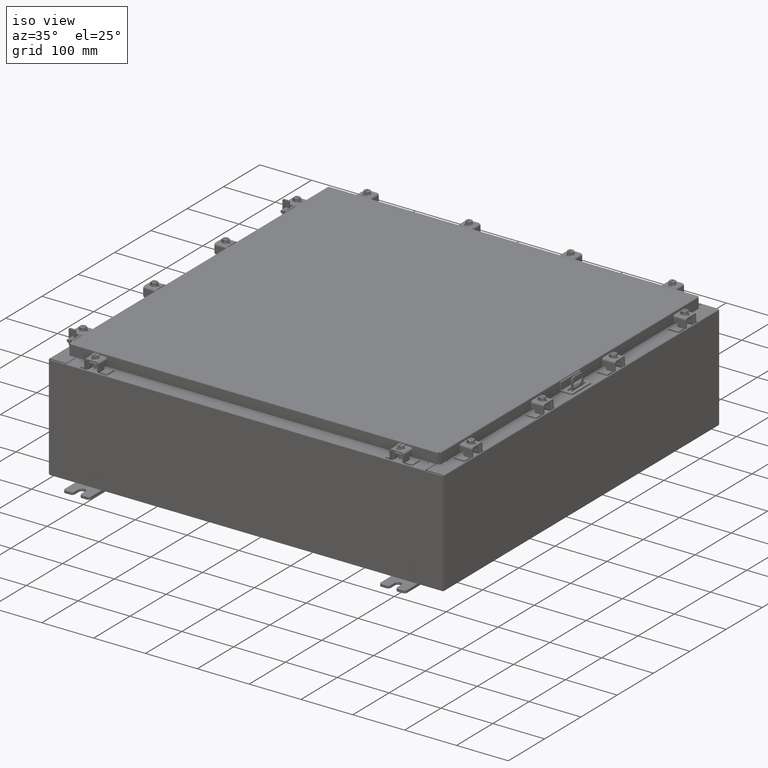
[diagram: clean part render]
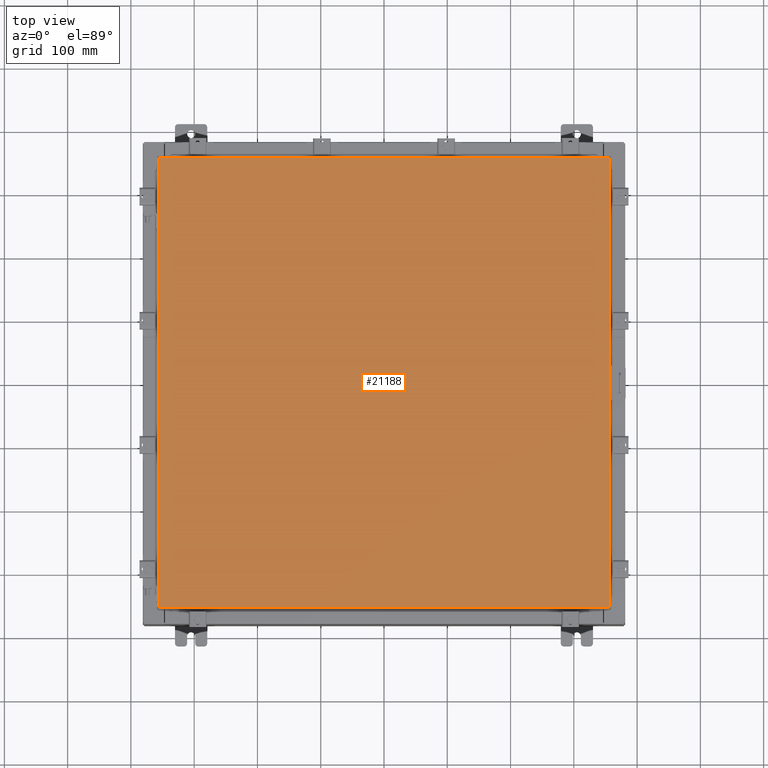
[diagram: tour spotlight — one face highlighted and labeled with its STEP entity id]
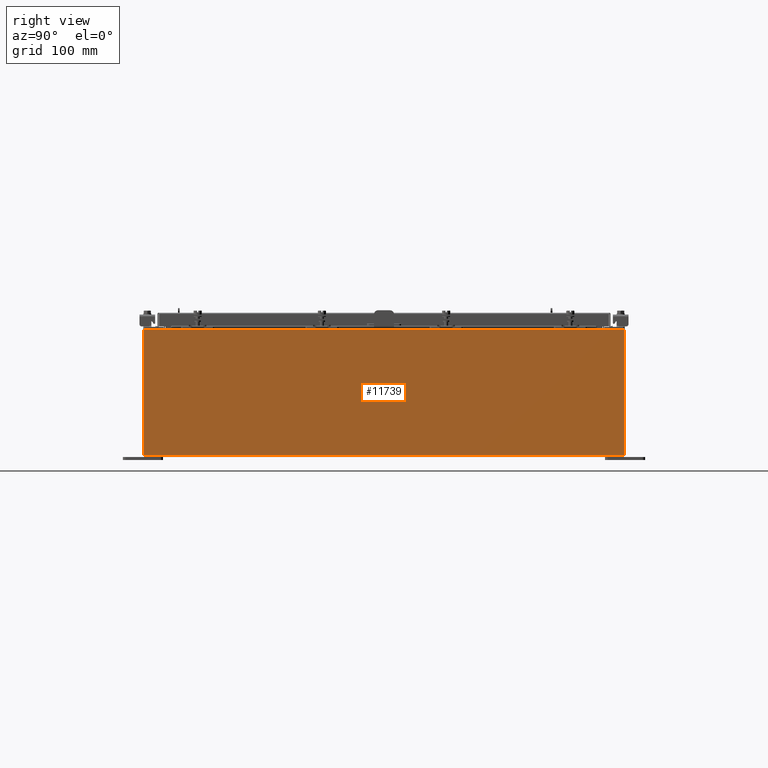
[diagram: tour spotlight — one face highlighted and labeled with its STEP entity id]
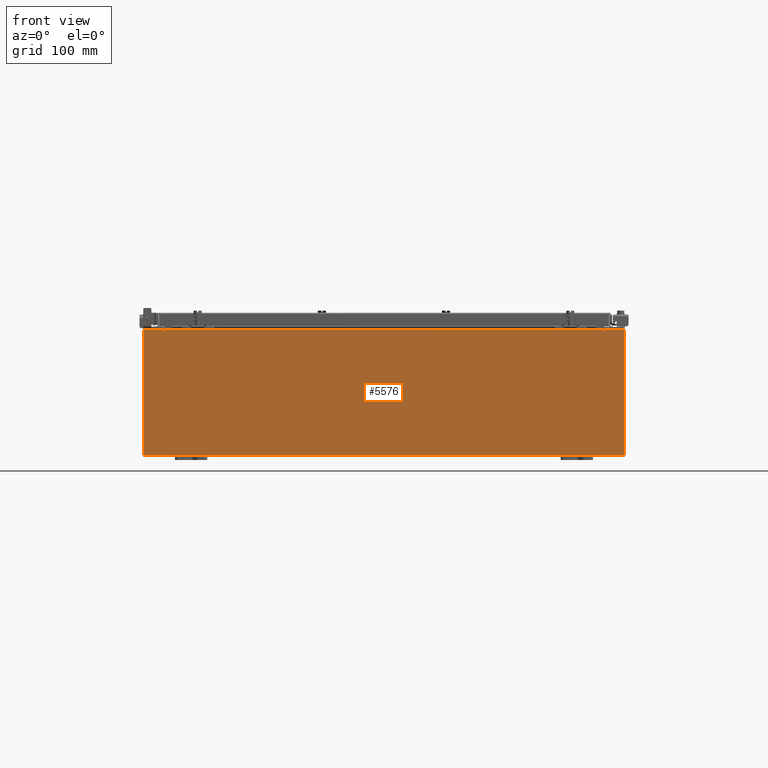
[diagram: tour spotlight — one face highlighted and labeled with its STEP entity id]
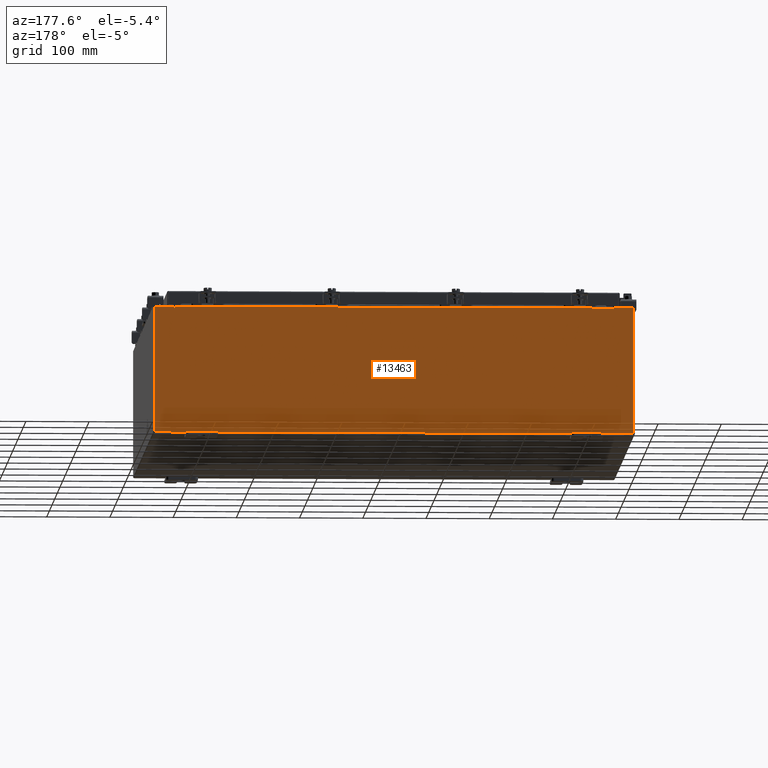
[diagram: tour spotlight — one face highlighted and labeled with its STEP entity id]
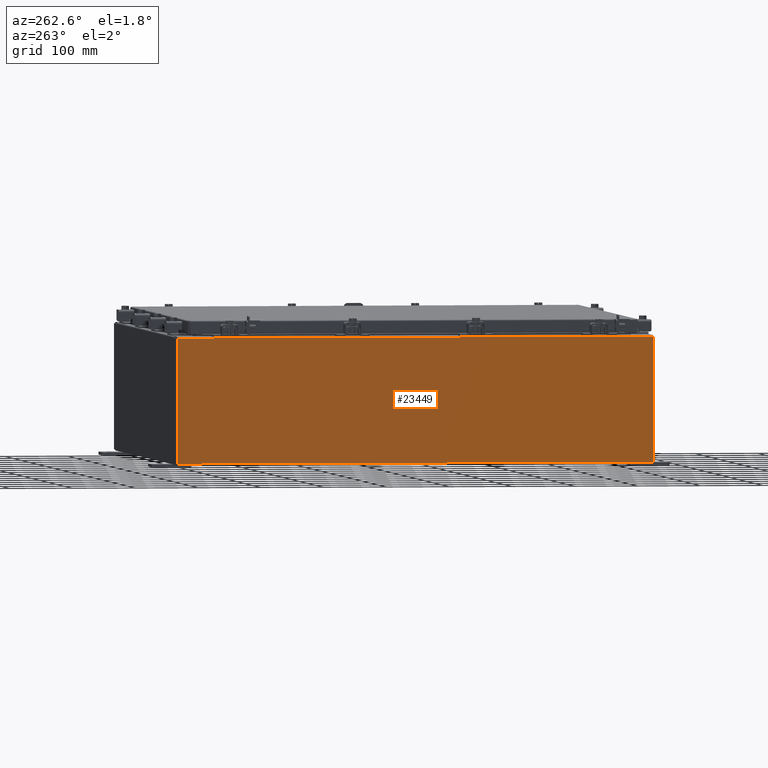
[diagram: tour spotlight — one face highlighted and labeled with its STEP entity id]
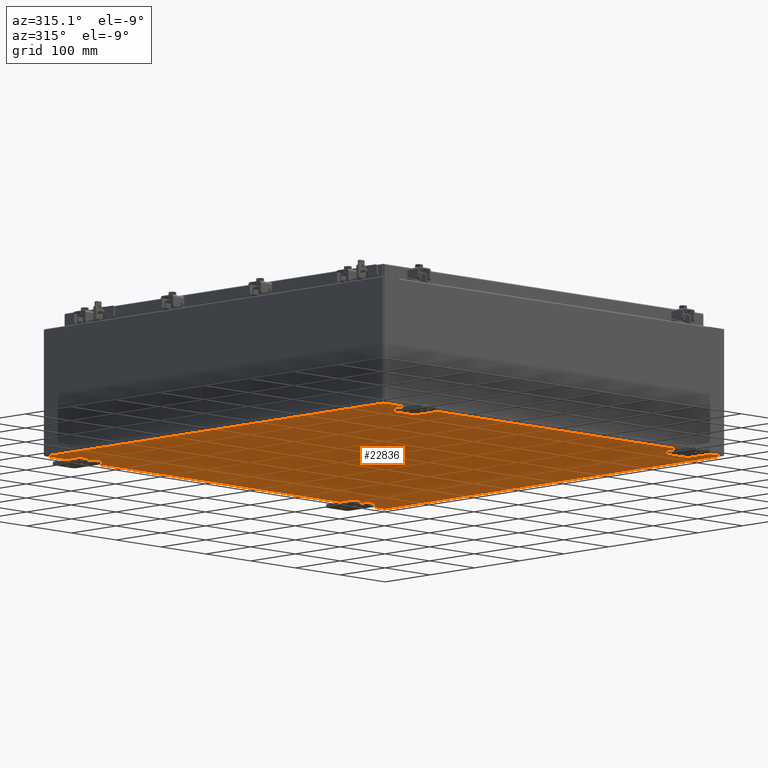
[diagram: tour spotlight — one face highlighted and labeled with its STEP entity id]
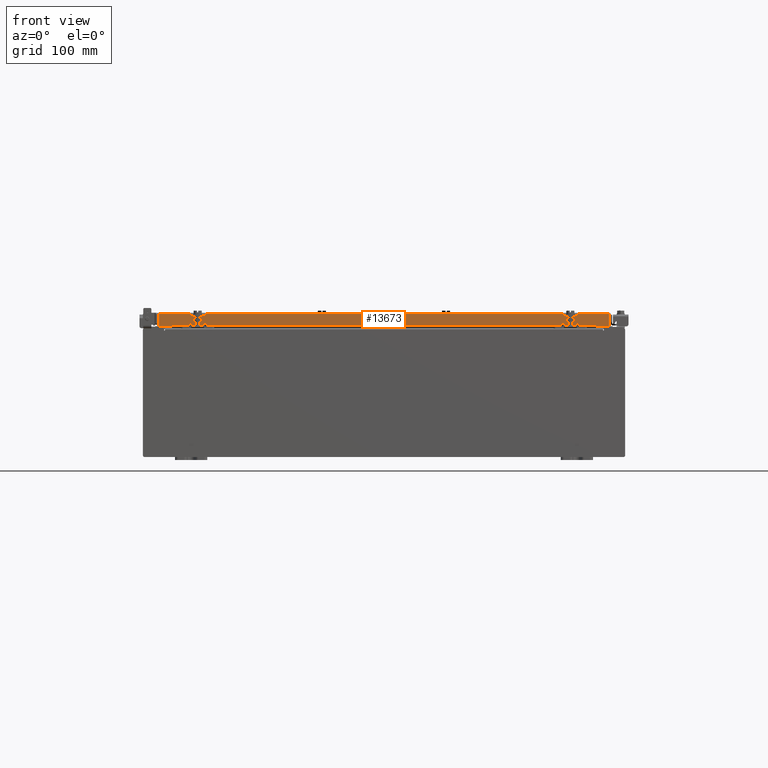
[diagram: tour spotlight — one face highlighted and labeled with its STEP entity id]
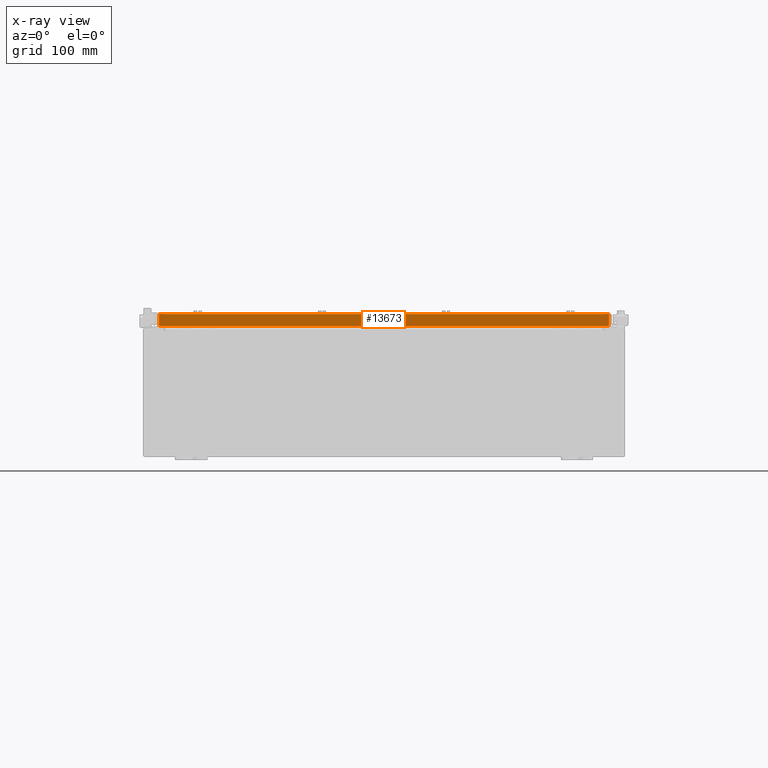
[diagram: x-ray of the same camera — body ghosted, this tour face saturated]
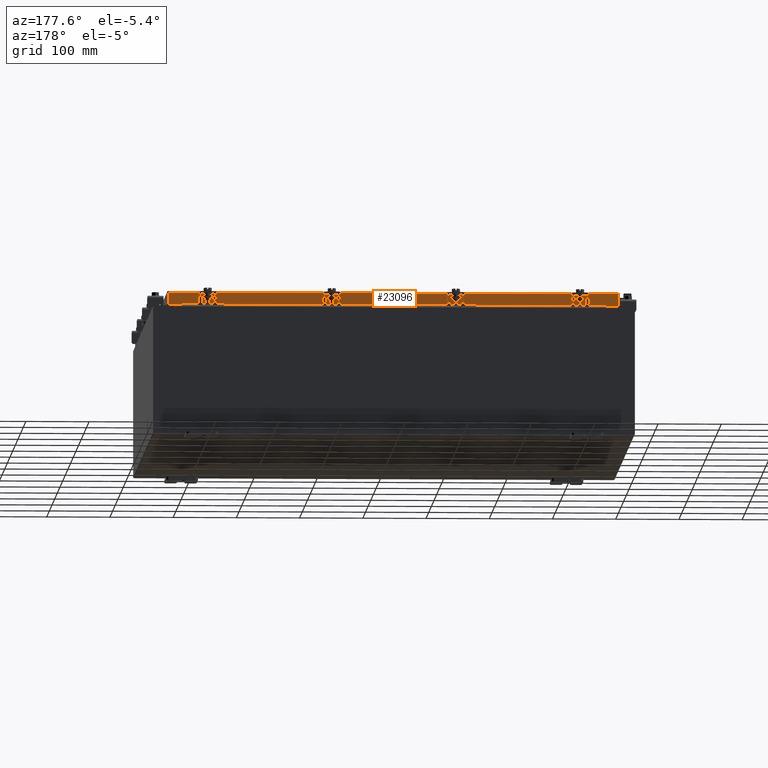
[diagram: tour spotlight — one face highlighted and labeled with its STEP entity id]
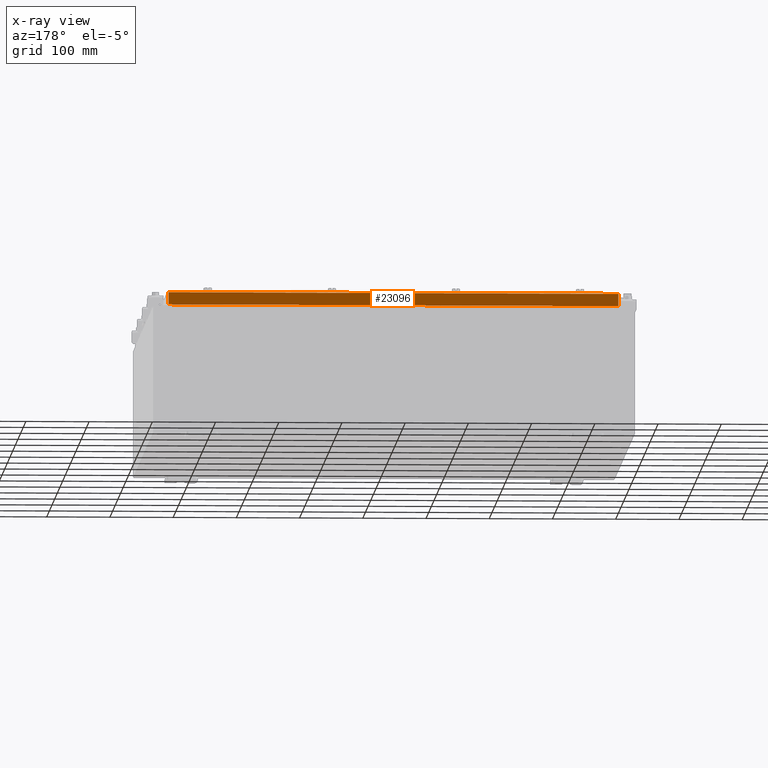
[diagram: x-ray of the same camera — body ghosted, this tour face saturated]
A machine part: a face-by-face anatomy tour. The part has 2310 B-rep faces; the first image is the clean iso view, then the 8 largest visible faces are spotlighted one at a time (largest first), each with its STEP entity span.

Face 1 — top view, entity #21188. In plain terms, the highlighted planar face has unit normal (0, 0, -1).
Definition (entity closure, byte-faithful):
#288 = CARTESIAN_POINT ( 'NONE',  ( -14.00629999999999800, 14.00629999999999800, 0.0000000000000000000 ) ) ;
#478 = CARTESIAN_POINT ( 'NONE',  ( -14.00629999999999800, 14.00629999999999800, 0.0000000000000000000 ) ) ;
#1221 = CARTESIAN_POINT ( 'NONE',  ( 14.00629999999999800, 14.00629999999999800, 0.0000000000000000000 ) ) ;
#2159 = VERTEX_POINT ( 'NONE', #22459 ) ;
#2402 = ORIENTED_EDGE ( 'NONE', *, *, #14983, .T. ) ;
#2438 = CARTESIAN_POINT ( 'NONE',  ( 0.0000000000000000000, 0.0000000000000000000, 0.0000000000000000000 ) ) ;
#2498 = VERTEX_POINT ( 'NONE', #21458 ) ;
#5860 = VECTOR ( 'NONE', #22210, 39.37007874015748100 ) ;
#6035 = LINE ( 'NONE', #1221, #7207 ) ;
#6199 = DIRECTION ( 'NONE',  ( -1.000000000000000000, 0.0000000000000000000, -0.0000000000000000000 ) ) ;
#6863 = VECTOR ( 'NONE', #20991, 39.37007874015748100 ) ;
#7049 = LINE ( 'NONE', #9372, #21373 ) ;
#7207 = VECTOR ( 'NONE', #14345, 39.37007874015748100 ) ;
#7537 = ORIENTED_EDGE ( 'NONE', *, *, #11811, .T. ) ;
#9002 = FACE_OUTER_BOUND ( 'NONE', #13711, .T. ) ;
#9227 = CARTESIAN_POINT ( 'NONE',  ( 14.00629999999999800, -14.00629999999999800, 0.0000000000000000000 ) ) ;
#9372 = CARTESIAN_POINT ( 'NONE',  ( -14.00629999999999800, -14.00629999999999800, 0.0000000000000000000 ) ) ;
#11427 = LINE ( 'NONE', #9227, #5860 ) ;
#11811 = EDGE_CURVE ( 'NONE', #15151, #2498, #22016, .T. ) ;
#13711 = EDGE_LOOP ( 'NONE', ( #23045, #2402, #13995, #7537 ) ) ;
#13995 = ORIENTED_EDGE ( 'NONE', *, *, #18740, .T. ) ;
#14303 = VERTEX_POINT ( 'NONE', #22443 ) ;
#14327 = EDGE_CURVE ( 'NONE', #2498, #2159, #7049, .T. ) ;
#14345 = DIRECTION ( 'NONE',  ( -1.000000000000000000, -0.0000000000000000000, -0.0000000000000000000 ) ) ;
#14983 = EDGE_CURVE ( 'NONE', #2159, #14303, #11427, .T. ) ;
#15151 = VERTEX_POINT ( 'NONE', #288 ) ;
#17425 = DIRECTION ( 'NONE',  ( 0.0000000000000000000, 0.0000000000000000000, -1.000000000000000000 ) ) ;
#18740 = EDGE_CURVE ( 'NONE', #14303, #15151, #6035, .T. ) ;
#19633 = AXIS2_PLACEMENT_3D ( 'NONE', #2438, #17425, #6199 ) ;
#20991 = DIRECTION ( 'NONE',  ( 0.0000000000000000000, -1.000000000000000000, 0.0000000000000000000 ) ) ;
#21188 = ADVANCED_FACE ( 'NONE', ( #9002 ), #22939, .F. ) ;
#21373 = VECTOR ( 'NONE', #22519, 39.37007874015748100 ) ;
#21458 = CARTESIAN_POINT ( 'NONE',  ( -14.00629999999999800, -14.00629999999999800, 0.0000000000000000000 ) ) ;
#22016 = LINE ( 'NONE', #478, #6863 ) ;
#22210 = DIRECTION ( 'NONE',  ( 0.0000000000000000000, 1.000000000000000000, 0.0000000000000000000 ) ) ;
#22443 = CARTESIAN_POINT ( 'NONE',  ( 14.00629999999999800, 14.00629999999999800, 0.0000000000000000000 ) ) ;
#22459 = CARTESIAN_POINT ( 'NONE',  ( 14.00629999999999800, -14.00629999999999800, 0.0000000000000000000 ) ) ;
#22519 = DIRECTION ( 'NONE',  ( 1.000000000000000000, -0.0000000000000000000, -0.0000000000000000000 ) ) ;
#22939 = PLANE ( 'NONE',  #19633 ) ;
#23045 = ORIENTED_EDGE ( 'NONE', *, *, #14327, .T. ) ;

Face 2 — right view, entity #11739. In plain terms, the highlighted planar face has unit normal (-1, 0, 0).
Definition (entity closure, byte-faithful):
#373 = LINE ( 'NONE', #16859, #24048 ) ;
#957 = CARTESIAN_POINT ( 'NONE',  ( 15.00000000000000000, -14.92530000000000000, -5.403395625144962700E-014 ) ) ;
#1266 = EDGE_LOOP ( 'NONE', ( #13657, #14755, #15357, #10766 ) ) ;
#2203 = CARTESIAN_POINT ( 'NONE',  ( 15.00000000000000000, 0.0000000000000000000, -5.403395625144962700E-014 ) ) ;
#2644 = AXIS2_PLACEMENT_3D ( 'NONE', #2203, #4080, #17189 ) ;
#3667 = LINE ( 'NONE', #957, #8611 ) ;
#4080 = DIRECTION ( 'NONE',  ( -1.000000000000000000, 0.0000000000000000000, 3.584876173029202900E-015 ) ) ;
#5635 = DIRECTION ( 'NONE',  ( -0.0000000000000000000, -1.000000000000000000, -0.0000000000000000000 ) ) ;
#6077 = DIRECTION ( 'NONE',  ( 3.584876173029202900E-015, 0.0000000000000000000, 1.000000000000000000 ) ) ;
#6902 = CARTESIAN_POINT ( 'NONE',  ( 15.00000000000000000, -14.92530000000000000, 0.01299999999999984700 ) ) ;
#7866 = LINE ( 'NONE', #19165, #22783 ) ;
#8359 = CARTESIAN_POINT ( 'NONE',  ( 15.00000000000002800, -14.92530000000000200, 7.837599999999998300 ) ) ;
#8611 = VECTOR ( 'NONE', #12188, 39.37007874015748100 ) ;
#8771 = LINE ( 'NONE', #6902, #13188 ) ;
#9881 = VERTEX_POINT ( 'NONE', #10401 ) ;
#10401 = CARTESIAN_POINT ( 'NONE',  ( 15.00000000000000000, -14.92530000000000000, 0.01299999999999983600 ) ) ;
#10665 = DIRECTION ( 'NONE',  ( -0.0000000000000000000, -1.000000000000000000, -0.0000000000000000000 ) ) ;
#10766 = ORIENTED_EDGE ( 'NONE', *, *, #16529, .T. ) ;
#11739 = ADVANCED_FACE ( 'NONE', ( #13835 ), #13424, .F. ) ;
#12188 = DIRECTION ( 'NONE',  ( -3.584876173029202900E-015, 0.0000000000000000000, -1.000000000000000000 ) ) ;
#12764 = EDGE_CURVE ( 'NONE', #17103, #19923, #373, .T. ) ;
#13188 = VECTOR ( 'NONE', #10665, 39.37007874015748100 ) ;
#13424 = PLANE ( 'NONE',  #2644 ) ;
#13657 = ORIENTED_EDGE ( 'NONE', *, *, #12764, .T. ) ;
#13835 = FACE_OUTER_BOUND ( 'NONE', #1266, .T. ) ;
#14755 = ORIENTED_EDGE ( 'NONE', *, *, #19430, .T. ) ;
#14815 = EDGE_CURVE ( 'NONE', #21881, #9881, #8771, .T. ) ;
#15357 = ORIENTED_EDGE ( 'NONE', *, *, #14815, .F. ) ;
#16529 = EDGE_CURVE ( 'NONE', #21881, #17103, #7866, .T. ) ;
#16859 = CARTESIAN_POINT ( 'NONE',  ( 15.00000000000002800, 14.92530000000000200, 7.837599999999992100 ) ) ;
#17103 = VERTEX_POINT ( 'NONE', #20919 ) ;
#17189 = DIRECTION ( 'NONE',  ( 3.584876173029202900E-015, 0.0000000000000000000, 1.000000000000000000 ) ) ;
#19165 = CARTESIAN_POINT ( 'NONE',  ( 15.00000000000000000, 14.92530000000000000, -5.403395625144962700E-014 ) ) ;
#19430 = EDGE_CURVE ( 'NONE', #19923, #9881, #3667, .T. ) ;
#19923 = VERTEX_POINT ( 'NONE', #8359 ) ;
#20919 = CARTESIAN_POINT ( 'NONE',  ( 15.00000000000002800, 14.92530000000000200, 7.837599999999992100 ) ) ;
#21370 = CARTESIAN_POINT ( 'NONE',  ( 15.00000000000000000, 14.92530000000000000, 0.01299999999999984700 ) ) ;
#21881 = VERTEX_POINT ( 'NONE', #21370 ) ;
#22783 = VECTOR ( 'NONE', #6077, 39.37007874015748100 ) ;
#24048 = VECTOR ( 'NONE', #5635, 39.37007874015748100 ) ;

Face 3 — front view, entity #5576. In plain terms, the highlighted planar face has unit normal (-0, 1, -0).
Definition (entity closure, byte-faithful):
#173 = DIRECTION ( 'NONE',  ( -0.0000000000000000000, 1.000000000000000000, -0.0000000000000000000 ) ) ;
#260 = VECTOR ( 'NONE', #18385, 39.37007874015748100 ) ;
#1399 = EDGE_CURVE ( 'NONE', #8171, #17185, #19678, .T. ) ;
#1581 = DIRECTION ( 'NONE',  ( -0.0000000000000000000, -0.0000000000000000000, 1.000000000000000000 ) ) ;
#1772 = EDGE_CURVE ( 'NONE', #15857, #14213, #18214, .T. ) ;
#2284 = CARTESIAN_POINT ( 'NONE',  ( -13.63719999999999600, 1.024442997624098700E-016, 3.912299999999999700 ) ) ;
#2357 = CARTESIAN_POINT ( 'NONE',  ( 14.92530000000000200, 0.0000000000000000000, 3.925299999999999600 ) ) ;
#2572 = DIRECTION ( 'NONE',  ( 1.000000000000000000, 0.0000000000000000000, 0.0000000000000000000 ) ) ;
#2694 = DIRECTION ( 'NONE',  ( 1.000000000000000000, 0.0000000000000000000, 0.0000000000000000000 ) ) ;
#2708 = LINE ( 'NONE', #12253, #6506 ) ;
#2855 = VECTOR ( 'NONE', #22524, 39.37007874015748100 ) ;
#3261 = VECTOR ( 'NONE', #18654, 39.37007874015748100 ) ;
#4186 = ORIENTED_EDGE ( 'NONE', *, *, #17609, .T. ) ;
#4211 = DIRECTION ( 'NONE',  ( -0.0000000000000000000, 1.000000000000000000, -0.0000000000000000000 ) ) ;
#5109 = EDGE_CURVE ( 'NONE', #8366, #21524, #5772, .T. ) ;
#5290 = EDGE_CURVE ( 'NONE', #14213, #15899, #11628, .T. ) ;
#5576 = ADVANCED_FACE ( 'NONE', ( #21245 ), #17140, .F. ) ;
#5596 = ORIENTED_EDGE ( 'NONE', *, *, #16391, .F. ) ;
#5772 = LINE ( 'NONE', #17886, #20101 ) ;
#6129 = DIRECTION ( 'NONE',  ( 0.0000000000000000000, 0.0000000000000000000, -1.000000000000000000 ) ) ;
#6198 = ORIENTED_EDGE ( 'NONE', *, *, #1399, .T. ) ;
#6506 = VECTOR ( 'NONE', #8448, 39.37007874015748100 ) ;
#6649 = VECTOR ( 'NONE', #21841, 39.37007874015748100 ) ;
#7083 = CARTESIAN_POINT ( 'NONE',  ( 13.67455000000000200, 0.0000000000000000000, 3.874949999999999700 ) ) ;
#7154 = CARTESIAN_POINT ( 'NONE',  ( 13.67454999999983300, -0.0000000000000000000, -5.935537951421816200E-013 ) ) ;
#8171 = VERTEX_POINT ( 'NONE', #2284 ) ;
#8366 = VERTEX_POINT ( 'NONE', #12105 ) ;
#8448 = DIRECTION ( 'NONE',  ( 0.0000000000000000000, 0.0000000000000000000, 1.000000000000000000 ) ) ;
#8490 = EDGE_LOOP ( 'NONE', ( #11691, #17004, #15975, #6198, #8895, #5596, #21938, #23250, #8592, #12836, #12160, #4186 ) ) ;
#8592 = ORIENTED_EDGE ( 'NONE', *, *, #11831, .T. ) ;
#8895 = ORIENTED_EDGE ( 'NONE', *, *, #13163, .F. ) ;
#8911 = EDGE_CURVE ( 'NONE', #14702, #8366, #19185, .T. ) ;
#9332 = CARTESIAN_POINT ( 'NONE',  ( 13.67455000000000400, 0.0000000000000000000, 3.925299999999999600 ) ) ;
#9507 = VERTEX_POINT ( 'NONE', #22493 ) ;
#9755 = DIRECTION ( 'NONE',  ( 0.0000000000000000000, -1.000000000000000000, 0.0000000000000000000 ) ) ;
#10767 = VECTOR ( 'NONE', #2572, 39.37007874015748100 ) ;
#10824 = CIRCLE ( 'NONE', #15280, 0.01867499999999949400 ) ;
#11261 = VECTOR ( 'NONE', #6129, 39.37007874015748100 ) ;
#11399 = CARTESIAN_POINT ( 'NONE',  ( 13.65587500000000200, 0.0000000000000000000, 3.874949999999999700 ) ) ;
#11628 = LINE ( 'NONE', #12817, #21546 ) ;
#11639 = LINE ( 'NONE', #19975, #6649 ) ;
#11691 = ORIENTED_EDGE ( 'NONE', *, *, #5109, .F. ) ;
#11823 = CARTESIAN_POINT ( 'NONE',  ( -14.92529999999999800, 0.0000000000000000000, 3.925299999999999600 ) ) ;
#11831 = EDGE_CURVE ( 'NONE', #23056, #15857, #16257, .T. ) ;
#11948 = LINE ( 'NONE', #21208, #10767 ) ;
#12105 = CARTESIAN_POINT ( 'NONE',  ( -13.67454999999999500, 0.0000000000000000000, 3.874949999999999700 ) ) ;
#12160 = ORIENTED_EDGE ( 'NONE', *, *, #5290, .T. ) ;
#12239 = LINE ( 'NONE', #12911, #2855 ) ;
#12253 = CARTESIAN_POINT ( 'NONE',  ( 13.63720000000000400, 0.0000000000000000000, 0.0000000000000000000 ) ) ;
#12817 = CARTESIAN_POINT ( 'NONE',  ( -14.92529999999999800, 0.0000000000000000000, 3.925299999999999600 ) ) ;
#12836 = ORIENTED_EDGE ( 'NONE', *, *, #1772, .T. ) ;
#12903 = CARTESIAN_POINT ( 'NONE',  ( -14.92529999999999800, 0.0000000000000000000, -3.925299999999999600 ) ) ;
#12911 = CARTESIAN_POINT ( 'NONE',  ( -14.92529999999999800, 0.0000000000000000000, 3.925299999999999600 ) ) ;
#13163 = EDGE_CURVE ( 'NONE', #9507, #17185, #2708, .T. ) ;
#13276 = DIRECTION ( 'NONE',  ( 0.0000000000000000000, 0.0000000000000000000, -1.000000000000000000 ) ) ;
#13460 = LINE ( 'NONE', #7154, #260 ) ;
#13683 = VERTEX_POINT ( 'NONE', #9332 ) ;
#14129 = DIRECTION ( 'NONE',  ( 0.0000000000000000000, 0.0000000000000000000, 1.000000000000000000 ) ) ;
#14148 = VERTEX_POINT ( 'NONE', #7083 ) ;
#14213 = VERTEX_POINT ( 'NONE', #12903 ) ;
#14702 = VERTEX_POINT ( 'NONE', #17873 ) ;
#14851 = AXIS2_PLACEMENT_3D ( 'NONE', #17224, #9755, #22821 ) ;
#15280 = AXIS2_PLACEMENT_3D ( 'NONE', #11399, #173, #13276 ) ;
#15454 = CARTESIAN_POINT ( 'NONE',  ( -13.65587499999999600, 0.0000000000000000000, 3.874949999999999700 ) ) ;
#15596 = EDGE_CURVE ( 'NONE', #13683, #14148, #13460, .T. ) ;
#15857 = VERTEX_POINT ( 'NONE', #19183 ) ;
#15899 = VERTEX_POINT ( 'NONE', #11823 ) ;
#15975 = ORIENTED_EDGE ( 'NONE', *, *, #22701, .F. ) ;
#16257 = LINE ( 'NONE', #2357, #11261 ) ;
#16391 = EDGE_CURVE ( 'NONE', #14148, #9507, #10824, .T. ) ;
#17004 = ORIENTED_EDGE ( 'NONE', *, *, #8911, .F. ) ;
#17140 = PLANE ( 'NONE',  #14851 ) ;
#17185 = VERTEX_POINT ( 'NONE', #19307 ) ;
#17224 = CARTESIAN_POINT ( 'NONE',  ( 0.0000000000000000000, 0.0000000000000000000, 0.0000000000000000000 ) ) ;
#17311 = DIRECTION ( 'NONE',  ( 0.0000000000000000000, 0.0000000000000000000, -1.000000000000000000 ) ) ;
#17609 = EDGE_CURVE ( 'NONE', #15899, #21524, #12239, .T. ) ;
#17873 = CARTESIAN_POINT ( 'NONE',  ( -13.63719999999999600, -0.0000000000000000000, 3.874949999999999700 ) ) ;
#17886 = CARTESIAN_POINT ( 'NONE',  ( -13.67454999999999500, -0.0000000000000000000, 0.0000000000000000000 ) ) ;
#18214 = LINE ( 'NONE', #24155, #3261 ) ;
#18385 = DIRECTION ( 'NONE',  ( -4.340572780400004900E-014, 0.0000000000000000000, -1.000000000000000000 ) ) ;
#18654 = DIRECTION ( 'NONE',  ( -1.000000000000000000, -0.0000000000000000000, -0.0000000000000000000 ) ) ;
#19183 = CARTESIAN_POINT ( 'NONE',  ( 14.92530000000000200, 0.0000000000000000000, -3.925299999999999600 ) ) ;
#19185 = CIRCLE ( 'NONE', #20757, 0.01867499999999949400 ) ;
#19307 = CARTESIAN_POINT ( 'NONE',  ( 13.63720000000000400, 0.0000000000000000000, 3.912299999999999700 ) ) ;
#19678 = LINE ( 'NONE', #23187, #20238 ) ;
#19975 = CARTESIAN_POINT ( 'NONE',  ( -13.63719999999999600, -0.0000000000000000000, 0.0000000000000000000 ) ) ;
#20088 = CARTESIAN_POINT ( 'NONE',  ( -13.67454999999999500, 0.0000000000000000000, 3.925299999999999600 ) ) ;
#20101 = VECTOR ( 'NONE', #14129, 39.37007874015748100 ) ;
#20238 = VECTOR ( 'NONE', #2694, 39.37007874015748100 ) ;
#20757 = AXIS2_PLACEMENT_3D ( 'NONE', #15454, #4211, #17311 ) ;
#21208 = CARTESIAN_POINT ( 'NONE',  ( -14.92529999999999800, 0.0000000000000000000, 3.925299999999999600 ) ) ;
#21245 = FACE_OUTER_BOUND ( 'NONE', #8490, .T. ) ;
#21524 = VERTEX_POINT ( 'NONE', #20088 ) ;
#21546 = VECTOR ( 'NONE', #1581, 39.37007874015748100 ) ;
#21841 = DIRECTION ( 'NONE',  ( 0.0000000000000000000, 0.0000000000000000000, -1.000000000000000000 ) ) ;
#21938 = ORIENTED_EDGE ( 'NONE', *, *, #15596, .F. ) ;
#22462 = EDGE_CURVE ( 'NONE', #13683, #23056, #11948, .T. ) ;
#22493 = CARTESIAN_POINT ( 'NONE',  ( 13.63720000000000400, 0.0000000000000000000, 3.874949999999999700 ) ) ;
#22524 = DIRECTION ( 'NONE',  ( 1.000000000000000000, 0.0000000000000000000, 0.0000000000000000000 ) ) ;
#22701 = EDGE_CURVE ( 'NONE', #8171, #14702, #11639, .T. ) ;
#22808 = CARTESIAN_POINT ( 'NONE',  ( 14.92530000000000200, 0.0000000000000000000, 3.925299999999999600 ) ) ;
#22821 = DIRECTION ( 'NONE',  ( 0.0000000000000000000, -0.0000000000000000000, -1.000000000000000000 ) ) ;
#23056 = VERTEX_POINT ( 'NONE', #22808 ) ;
#23187 = CARTESIAN_POINT ( 'NONE',  ( -13.63719999999999800, 1.024442997624098700E-016, 3.912299999999999700 ) ) ;
#23250 = ORIENTED_EDGE ( 'NONE', *, *, #22462, .T. ) ;
#24155 = CARTESIAN_POINT ( 'NONE',  ( -14.92529999999999800, 0.0000000000000000000, -3.925299999999999600 ) ) ;

Face 4 — auxiliary view, entity #13463. In plain terms, the highlighted planar face has unit normal (0, -1, 0).
Definition (entity closure, byte-faithful):
#1515 = CARTESIAN_POINT ( 'NONE',  ( 13.65587500000000200, 0.0000000000000000000, 3.874949999999999700 ) ) ;
#1530 = VERTEX_POINT ( 'NONE', #18002 ) ;
#1547 = CARTESIAN_POINT ( 'NONE',  ( 13.67455000000000200, 0.0000000000000000000, 3.874949999999999700 ) ) ;
#1579 = VERTEX_POINT ( 'NONE', #12515 ) ;
#1583 = DIRECTION ( 'NONE',  ( 0.0000000000000000000, 0.0000000000000000000, -1.000000000000000000 ) ) ;
#1667 = VERTEX_POINT ( 'NONE', #16523 ) ;
#1747 = ORIENTED_EDGE ( 'NONE', *, *, #7562, .T. ) ;
#1769 = AXIS2_PLACEMENT_3D ( 'NONE', #1515, #14626, #3411 ) ;
#2038 = CARTESIAN_POINT ( 'NONE',  ( 13.67454999999983300, -0.0000000000000000000, -5.935537951421816200E-013 ) ) ;
#2401 = FACE_OUTER_BOUND ( 'NONE', #11634, .T. ) ;
#2427 = ORIENTED_EDGE ( 'NONE', *, *, #11718, .F. ) ;
#2960 = VERTEX_POINT ( 'NONE', #11862 ) ;
#3114 = PLANE ( 'NONE',  #17884 ) ;
#3309 = EDGE_CURVE ( 'NONE', #7070, #8827, #9360, .T. ) ;
#3411 = DIRECTION ( 'NONE',  ( 0.0000000000000000000, 0.0000000000000000000, -1.000000000000000000 ) ) ;
#3498 = LINE ( 'NONE', #23968, #12869 ) ;
#3507 = ORIENTED_EDGE ( 'NONE', *, *, #15466, .T. ) ;
#3628 = CARTESIAN_POINT ( 'NONE',  ( -13.63719999999999600, -0.0000000000000000000, 3.874949999999999700 ) ) ;
#3638 = ORIENTED_EDGE ( 'NONE', *, *, #17522, .T. ) ;
#3870 = VECTOR ( 'NONE', #13337, 39.37007874015748100 ) ;
#4005 = CARTESIAN_POINT ( 'NONE',  ( 13.63720000000000400, 0.0000000000000000000, 0.0000000000000000000 ) ) ;
#4282 = DIRECTION ( 'NONE',  ( 1.000000000000000000, 0.0000000000000000000, 0.0000000000000000000 ) ) ;
#4426 = CARTESIAN_POINT ( 'NONE',  ( -13.63719999999999600, 1.024442997624098700E-016, 3.912299999999999700 ) ) ;
#4825 = VERTEX_POINT ( 'NONE', #22530 ) ;
#5037 = LINE ( 'NONE', #2038, #18814 ) ;
#5513 = EDGE_CURVE ( 'NONE', #22273, #2960, #18062, .T. ) ;
#5918 = DIRECTION ( 'NONE',  ( -1.000000000000000000, -0.0000000000000000000, -0.0000000000000000000 ) ) ;
#6240 = CARTESIAN_POINT ( 'NONE',  ( -13.67454999999999500, -0.0000000000000000000, 0.0000000000000000000 ) ) ;
#6446 = DIRECTION ( 'NONE',  ( 1.000000000000000000, 0.0000000000000000000, 0.0000000000000000000 ) ) ;
#6856 = ORIENTED_EDGE ( 'NONE', *, *, #16351, .F. ) ;
#6881 = DIRECTION ( 'NONE',  ( 0.0000000000000000000, -0.0000000000000000000, -1.000000000000000000 ) ) ;
#7070 = VERTEX_POINT ( 'NONE', #1547 ) ;
#7176 = CARTESIAN_POINT ( 'NONE',  ( -14.92529999999999800, 0.0000000000000000000, 3.925299999999999600 ) ) ;
#7562 = EDGE_CURVE ( 'NONE', #9010, #1530, #15354, .T. ) ;
#7564 = ORIENTED_EDGE ( 'NONE', *, *, #11689, .F. ) ;
#7585 = EDGE_CURVE ( 'NONE', #4825, #1579, #10349, .T. ) ;
#8012 = CARTESIAN_POINT ( 'NONE',  ( -14.92529999999999800, 0.0000000000000000000, 3.925299999999999600 ) ) ;
#8039 = ORIENTED_EDGE ( 'NONE', *, *, #5513, .T. ) ;
#8827 = VERTEX_POINT ( 'NONE', #20799 ) ;
#9010 = VERTEX_POINT ( 'NONE', #19347 ) ;
#9360 = CIRCLE ( 'NONE', #1769, 0.01867499999999949400 ) ;
#9426 = CARTESIAN_POINT ( 'NONE',  ( -13.65587499999999600, 0.0000000000000000000, 3.874949999999999700 ) ) ;
#9445 = LINE ( 'NONE', #13806, #15032 ) ;
#9761 = VERTEX_POINT ( 'NONE', #4426 ) ;
#10184 = LINE ( 'NONE', #7176, #23896 ) ;
#10244 = AXIS2_PLACEMENT_3D ( 'NONE', #9426, #22494, #11323 ) ;
#10349 = LINE ( 'NONE', #6240, #14760 ) ;
#10392 = ORIENTED_EDGE ( 'NONE', *, *, #13924, .T. ) ;
#11323 = DIRECTION ( 'NONE',  ( 0.0000000000000000000, 0.0000000000000000000, -1.000000000000000000 ) ) ;
#11411 = VECTOR ( 'NONE', #17812, 39.37007874015748100 ) ;
#11634 = EDGE_LOOP ( 'NONE', ( #21503, #6856, #16064, #10392, #2427, #17814, #7564, #1747, #3507, #8039, #3638, #16405 ) ) ;
#11689 = EDGE_CURVE ( 'NONE', #9010, #7070, #5037, .T. ) ;
#11718 = EDGE_CURVE ( 'NONE', #8827, #19773, #18226, .T. ) ;
#11862 = CARTESIAN_POINT ( 'NONE',  ( -14.92529999999999800, 0.0000000000000000000, -3.925299999999999600 ) ) ;
#11932 = DIRECTION ( 'NONE',  ( 1.000000000000000000, 0.0000000000000000000, 0.0000000000000000000 ) ) ;
#12515 = CARTESIAN_POINT ( 'NONE',  ( -13.67454999999999500, 0.0000000000000000000, 3.925299999999999600 ) ) ;
#12869 = VECTOR ( 'NONE', #1583, 39.37007874015748100 ) ;
#13024 = EDGE_CURVE ( 'NONE', #1667, #1579, #9445, .T. ) ;
#13249 = DIRECTION ( 'NONE',  ( -4.340572780400004900E-014, 0.0000000000000000000, -1.000000000000000000 ) ) ;
#13337 = DIRECTION ( 'NONE',  ( 0.0000000000000000000, 0.0000000000000000000, 1.000000000000000000 ) ) ;
#13378 = CARTESIAN_POINT ( 'NONE',  ( -14.92529999999999800, 0.0000000000000000000, -3.925299999999999600 ) ) ;
#13463 = ADVANCED_FACE ( 'NONE', ( #2401 ), #3114, .F. ) ;
#13806 = CARTESIAN_POINT ( 'NONE',  ( -14.92529999999999800, 0.0000000000000000000, 3.925299999999999600 ) ) ;
#13924 = EDGE_CURVE ( 'NONE', #9761, #19773, #19085, .T. ) ;
#14112 = VECTOR ( 'NONE', #6446, 39.37007874015748100 ) ;
#14626 = DIRECTION ( 'NONE',  ( -0.0000000000000000000, 1.000000000000000000, -0.0000000000000000000 ) ) ;
#14760 = VECTOR ( 'NONE', #19332, 39.37007874015748100 ) ;
#15032 = VECTOR ( 'NONE', #11932, 39.37007874015748100 ) ;
#15354 = LINE ( 'NONE', #8012, #20280 ) ;
#15466 = EDGE_CURVE ( 'NONE', #1530, #22273, #16982, .T. ) ;
#15629 = EDGE_CURVE ( 'NONE', #9761, #20246, #3498, .T. ) ;
#16064 = ORIENTED_EDGE ( 'NONE', *, *, #15629, .F. ) ;
#16233 = CARTESIAN_POINT ( 'NONE',  ( 0.0000000000000000000, 0.0000000000000000000, 0.0000000000000000000 ) ) ;
#16351 = EDGE_CURVE ( 'NONE', #20246, #4825, #16400, .T. ) ;
#16400 = CIRCLE ( 'NONE', #10244, 0.01867499999999949400 ) ;
#16405 = ORIENTED_EDGE ( 'NONE', *, *, #13024, .T. ) ;
#16523 = CARTESIAN_POINT ( 'NONE',  ( -14.92529999999999800, 0.0000000000000000000, 3.925299999999999600 ) ) ;
#16821 = CARTESIAN_POINT ( 'NONE',  ( 14.92530000000000200, 0.0000000000000000000, -3.925299999999999600 ) ) ;
#16982 = LINE ( 'NONE', #19759, #11411 ) ;
#17243 = CARTESIAN_POINT ( 'NONE',  ( 13.63720000000000400, 0.0000000000000000000, 3.912299999999999700 ) ) ;
#17471 = VECTOR ( 'NONE', #5918, 39.37007874015748100 ) ;
#17522 = EDGE_CURVE ( 'NONE', #2960, #1667, #10184, .T. ) ;
#17660 = CARTESIAN_POINT ( 'NONE',  ( -13.63719999999999800, 1.024442997624098700E-016, 3.912299999999999700 ) ) ;
#17812 = DIRECTION ( 'NONE',  ( 0.0000000000000000000, 0.0000000000000000000, -1.000000000000000000 ) ) ;
#17814 = ORIENTED_EDGE ( 'NONE', *, *, #3309, .F. ) ;
#17884 = AXIS2_PLACEMENT_3D ( 'NONE', #16233, #18106, #6881 ) ;
#18002 = CARTESIAN_POINT ( 'NONE',  ( 14.92530000000000200, 0.0000000000000000000, 3.925299999999999600 ) ) ;
#18062 = LINE ( 'NONE', #13378, #17471 ) ;
#18106 = DIRECTION ( 'NONE',  ( 0.0000000000000000000, -1.000000000000000000, 0.0000000000000000000 ) ) ;
#18226 = LINE ( 'NONE', #4005, #3870 ) ;
#18405 = DIRECTION ( 'NONE',  ( -0.0000000000000000000, -0.0000000000000000000, 1.000000000000000000 ) ) ;
#18814 = VECTOR ( 'NONE', #13249, 39.37007874015748100 ) ;
#19085 = LINE ( 'NONE', #17660, #14112 ) ;
#19332 = DIRECTION ( 'NONE',  ( 0.0000000000000000000, 0.0000000000000000000, 1.000000000000000000 ) ) ;
#19347 = CARTESIAN_POINT ( 'NONE',  ( 13.67455000000000400, 0.0000000000000000000, 3.925299999999999600 ) ) ;
#19759 = CARTESIAN_POINT ( 'NONE',  ( 14.92530000000000200, 0.0000000000000000000, 3.925299999999999600 ) ) ;
#19773 = VERTEX_POINT ( 'NONE', #17243 ) ;
#20246 = VERTEX_POINT ( 'NONE', #3628 ) ;
#20280 = VECTOR ( 'NONE', #4282, 39.37007874015748100 ) ;
#20799 = CARTESIAN_POINT ( 'NONE',  ( 13.63720000000000400, 0.0000000000000000000, 3.874949999999999700 ) ) ;
#21503 = ORIENTED_EDGE ( 'NONE', *, *, #7585, .F. ) ;
#22273 = VERTEX_POINT ( 'NONE', #16821 ) ;
#22494 = DIRECTION ( 'NONE',  ( -0.0000000000000000000, 1.000000000000000000, -0.0000000000000000000 ) ) ;
#22530 = CARTESIAN_POINT ( 'NONE',  ( -13.67454999999999500, 0.0000000000000000000, 3.874949999999999700 ) ) ;
#23896 = VECTOR ( 'NONE', #18405, 39.37007874015748100 ) ;
#23968 = CARTESIAN_POINT ( 'NONE',  ( -13.63719999999999600, -0.0000000000000000000, 0.0000000000000000000 ) ) ;

Face 5 — auxiliary view, entity #23449. In plain terms, the highlighted planar face has unit normal (1, 0, 0).
Definition (entity closure, byte-faithful):
#382 = DIRECTION ( 'NONE',  ( -0.0000000000000000000, 1.000000000000000000, -0.0000000000000000000 ) ) ;
#1243 = CARTESIAN_POINT ( 'NONE',  ( -15.00000000000000000, -14.92530000000000000, 0.01299999999999984700 ) ) ;
#3166 = EDGE_LOOP ( 'NONE', ( #16303, #18006, #4733, #18871 ) ) ;
#3588 = DIRECTION ( 'NONE',  ( 1.000000000000000000, 0.0000000000000000000, 3.584876173029202900E-015 ) ) ;
#3771 = VECTOR ( 'NONE', #382, 39.37007874015748100 ) ;
#3847 = EDGE_CURVE ( 'NONE', #22689, #20222, #13744, .T. ) ;
#3970 = DIRECTION ( 'NONE',  ( 3.584876173029202900E-015, 0.0000000000000000000, -1.000000000000000000 ) ) ;
#4053 = CARTESIAN_POINT ( 'NONE',  ( -15.00000000000000000, 14.92530000000000000, -5.403395625144962700E-014 ) ) ;
#4106 = EDGE_CURVE ( 'NONE', #6352, #18023, #14022, .T. ) ;
#4733 = ORIENTED_EDGE ( 'NONE', *, *, #3847, .F. ) ;
#5413 = LINE ( 'NONE', #4053, #19754 ) ;
#5536 = DIRECTION ( 'NONE',  ( -3.584876173029202900E-015, 0.0000000000000000000, 1.000000000000000000 ) ) ;
#5960 = EDGE_CURVE ( 'NONE', #22689, #6352, #10424, .T. ) ;
#6352 = VERTEX_POINT ( 'NONE', #23716 ) ;
#7303 = CARTESIAN_POINT ( 'NONE',  ( -15.00000000000000000, 14.92530000000000000, 0.01299999999999983600 ) ) ;
#8853 = EDGE_CURVE ( 'NONE', #18023, #20222, #5413, .T. ) ;
#10424 = LINE ( 'NONE', #24141, #14835 ) ;
#10451 = CARTESIAN_POINT ( 'NONE',  ( -15.00000000000002800, -14.92530000000000000, 7.837599999999999200 ) ) ;
#12484 = CARTESIAN_POINT ( 'NONE',  ( -15.00000000000002800, 14.92530000000000000, 7.837599999999999200 ) ) ;
#13744 = LINE ( 'NONE', #17261, #3771 ) ;
#14022 = LINE ( 'NONE', #10451, #23332 ) ;
#14820 = CARTESIAN_POINT ( 'NONE',  ( -15.00000000000000000, 0.0000000000000000000, -5.403395625144962700E-014 ) ) ;
#14835 = VECTOR ( 'NONE', #5536, 39.37007874015748100 ) ;
#16303 = ORIENTED_EDGE ( 'NONE', *, *, #4106, .T. ) ;
#16700 = DIRECTION ( 'NONE',  ( 3.584876173029202900E-015, 0.0000000000000000000, -1.000000000000000000 ) ) ;
#17261 = CARTESIAN_POINT ( 'NONE',  ( -15.00000000000000000, 14.92530000000000000, 0.01299999999999984700 ) ) ;
#17463 = FACE_OUTER_BOUND ( 'NONE', #3166, .T. ) ;
#18006 = ORIENTED_EDGE ( 'NONE', *, *, #8853, .T. ) ;
#18023 = VERTEX_POINT ( 'NONE', #12484 ) ;
#18871 = ORIENTED_EDGE ( 'NONE', *, *, #5960, .T. ) ;
#19754 = VECTOR ( 'NONE', #3970, 39.37007874015748100 ) ;
#20222 = VERTEX_POINT ( 'NONE', #7303 ) ;
#21631 = DIRECTION ( 'NONE',  ( 0.0000000000000000000, 1.000000000000000000, 0.0000000000000000000 ) ) ;
#22158 = AXIS2_PLACEMENT_3D ( 'NONE', #14820, #3588, #16700 ) ;
#22214 = PLANE ( 'NONE',  #22158 ) ;
#22689 = VERTEX_POINT ( 'NONE', #1243 ) ;
#23332 = VECTOR ( 'NONE', #21631, 39.37007874015748100 ) ;
#23449 = ADVANCED_FACE ( 'NONE', ( #17463 ), #22214, .F. ) ;
#23716 = CARTESIAN_POINT ( 'NONE',  ( -15.00000000000002800, -14.92530000000000000, 7.837599999999999200 ) ) ;
#24141 = CARTESIAN_POINT ( 'NONE',  ( -15.00000000000000000, -14.92530000000000000, -5.403395625144962700E-014 ) ) ;

Face 6 — auxiliary view, entity #22836. In plain terms, the highlighted planar face has unit normal (0, 0, -1).
Definition (entity closure, byte-faithful):
#1728 = CARTESIAN_POINT ( 'NONE',  ( 0.0000000000000000000, 0.0000000000000000000, -0.07470000000000000300 ) ) ;
#2348 = EDGE_CURVE ( 'NONE', #11949, #5811, #2661, .T. ) ;
#2661 = LINE ( 'NONE', #7966, #7047 ) ;
#4303 = FACE_OUTER_BOUND ( 'NONE', #11852, .T. ) ;
#4696 = DIRECTION ( 'NONE',  ( -0.0000000000000000000, -1.000000000000000000, -0.0000000000000000000 ) ) ;
#4744 = CARTESIAN_POINT ( 'NONE',  ( -15.00000000000000000, 14.92530000000000000, -0.07470000000000000300 ) ) ;
#5377 = VERTEX_POINT ( 'NONE', #20386 ) ;
#5811 = VERTEX_POINT ( 'NONE', #10616 ) ;
#6153 = EDGE_CURVE ( 'NONE', #11949, #21587, #6894, .T. ) ;
#6894 = LINE ( 'NONE', #15452, #12470 ) ;
#7047 = VECTOR ( 'NONE', #21064, 39.37007874015748100 ) ;
#7364 = PLANE ( 'NONE',  #13088 ) ;
#7966 = CARTESIAN_POINT ( 'NONE',  ( -14.91230000000000000, -14.92530000000000000, -0.07469999999999994700 ) ) ;
#10616 = CARTESIAN_POINT ( 'NONE',  ( -14.91230000000000000, 14.92530000000000000, -0.07470000000000000300 ) ) ;
#10640 = ORIENTED_EDGE ( 'NONE', *, *, #22537, .T. ) ;
#11407 = EDGE_CURVE ( 'NONE', #5377, #5811, #14144, .T. ) ;
#11852 = EDGE_LOOP ( 'NONE', ( #14291, #17999, #17859, #10640 ) ) ;
#11949 = VERTEX_POINT ( 'NONE', #18120 ) ;
#12470 = VECTOR ( 'NONE', #20960, 39.37007874015748100 ) ;
#13034 = DIRECTION ( 'NONE',  ( -1.000000000000000000, 0.0000000000000000000, -0.0000000000000000000 ) ) ;
#13088 = AXIS2_PLACEMENT_3D ( 'NONE', #1728, #24194, #13034 ) ;
#13550 = VECTOR ( 'NONE', #14088, 39.37007874015748100 ) ;
#13992 = LINE ( 'NONE', #17790, #18965 ) ;
#14088 = DIRECTION ( 'NONE',  ( -1.000000000000000000, -0.0000000000000000000, -0.0000000000000000000 ) ) ;
#14144 = LINE ( 'NONE', #4744, #13550 ) ;
#14291 = ORIENTED_EDGE ( 'NONE', *, *, #6153, .F. ) ;
#15452 = CARTESIAN_POINT ( 'NONE',  ( -15.00000000000000000, -14.92530000000000000, -0.07470000000000000300 ) ) ;
#17790 = CARTESIAN_POINT ( 'NONE',  ( 14.91230000000000000, 14.92530000000000000, -0.07469999999999994700 ) ) ;
#17859 = ORIENTED_EDGE ( 'NONE', *, *, #11407, .F. ) ;
#17999 = ORIENTED_EDGE ( 'NONE', *, *, #2348, .T. ) ;
#18120 = CARTESIAN_POINT ( 'NONE',  ( -14.91230000000000000, -14.92530000000000000, -0.07469999999999994700 ) ) ;
#18965 = VECTOR ( 'NONE', #4696, 39.37007874015748100 ) ;
#20386 = CARTESIAN_POINT ( 'NONE',  ( 14.91230000000000000, 14.92530000000000000, -0.07469999999999994700 ) ) ;
#20658 = CARTESIAN_POINT ( 'NONE',  ( 14.91230000000000000, -14.92530000000000000, -0.07470000000000000300 ) ) ;
#20960 = DIRECTION ( 'NONE',  ( 1.000000000000000000, 0.0000000000000000000, 0.0000000000000000000 ) ) ;
#21064 = DIRECTION ( 'NONE',  ( -0.0000000000000000000, 1.000000000000000000, -0.0000000000000000000 ) ) ;
#21587 = VERTEX_POINT ( 'NONE', #20658 ) ;
#22537 = EDGE_CURVE ( 'NONE', #5377, #21587, #13992, .T. ) ;
#22836 = ADVANCED_FACE ( 'NONE', ( #4303 ), #7364, .T. ) ;
#24194 = DIRECTION ( 'NONE',  ( 0.0000000000000000000, 0.0000000000000000000, -1.000000000000000000 ) ) ;

Face 7 — front view, entity #13673. An x-ray twin of the same camera follows (body ghosted, this face saturated) — the face is partly hidden behind the body. In plain terms, the highlighted planar face has unit normal (-0, 1, -0).
Definition (entity closure, byte-faithful):
#484 = EDGE_CURVE ( 'NONE', #19361, #4260, #11440, .T. ) ;
#1511 = ORIENTED_EDGE ( 'NONE', *, *, #18997, .F. ) ;
#2508 = LINE ( 'NONE', #9403, #6897 ) ;
#2522 = ORIENTED_EDGE ( 'NONE', *, *, #484, .F. ) ;
#4012 = VECTOR ( 'NONE', #18057, 39.37007874015748100 ) ;
#4192 = VERTEX_POINT ( 'NONE', #14472 ) ;
#4260 = VERTEX_POINT ( 'NONE', #8955 ) ;
#4943 = DIRECTION ( 'NONE',  ( -1.000000000000000000, -0.0000000000000000000, 1.211441035930299800E-016 ) ) ;
#5176 = EDGE_CURVE ( 'NONE', #20261, #4192, #14568, .T. ) ;
#5647 = DIRECTION ( 'NONE',  ( 0.0000000000000000000, 2.818880942772360100E-015, 1.000000000000000000 ) ) ;
#6646 = ORIENTED_EDGE ( 'NONE', *, *, #8452, .T. ) ;
#6827 = CARTESIAN_POINT ( 'NONE',  ( 14.00515786437626900, -14.09399999999999900, -0.07470000000000015500 ) ) ;
#6897 = VECTOR ( 'NONE', #20596, 39.37007874015748100 ) ;
#6927 = CARTESIAN_POINT ( 'NONE',  ( 13.25515786437626700, -14.09399999999999200, -0.8500000000000010900 ) ) ;
#7369 = PLANE ( 'NONE',  #16178 ) ;
#8057 = ORIENTED_EDGE ( 'NONE', *, *, #14771, .F. ) ;
#8452 = EDGE_CURVE ( 'NONE', #12960, #11256, #22395, .T. ) ;
#8955 = CARTESIAN_POINT ( 'NONE',  ( -13.25515786437626700, -14.09399999999999200, -0.8500000000000010900 ) ) ;
#9205 = ORIENTED_EDGE ( 'NONE', *, *, #5176, .F. ) ;
#9403 = CARTESIAN_POINT ( 'NONE',  ( 14.09399999999999900, -14.09399999999999900, -0.08770000000000026400 ) ) ;
#10461 = CARTESIAN_POINT ( 'NONE',  ( -14.00515786437626900, -14.09399999999999900, 4.043135030623109600E-014 ) ) ;
#10501 = LINE ( 'NONE', #22068, #15500 ) ;
#11209 = CARTESIAN_POINT ( 'NONE',  ( 0.0000000000000000000, -14.09399999999999900, 4.043135030623109600E-014 ) ) ;
#11256 = VERTEX_POINT ( 'NONE', #13766 ) ;
#11440 = LINE ( 'NONE', #23154, #15844 ) ;
#11767 = CARTESIAN_POINT ( 'NONE',  ( -14.00515786437626500, -14.09399999999999900, -0.08770000000000026400 ) ) ;
#12781 = DIRECTION ( 'NONE',  ( -1.000000000000000000, -0.0000000000000000000, 1.211441035930299800E-016 ) ) ;
#12960 = VERTEX_POINT ( 'NONE', #11767 ) ;
#13231 = FACE_OUTER_BOUND ( 'NONE', #23619, .T. ) ;
#13673 = ADVANCED_FACE ( 'NONE', ( #13231 ), #7369, .F. ) ;
#13766 = CARTESIAN_POINT ( 'NONE',  ( -14.00515786437626900, -14.09400000000000100, -0.8499999999999966500 ) ) ;
#13781 = LINE ( 'NONE', #18046, #18764 ) ;
#14472 = CARTESIAN_POINT ( 'NONE',  ( 14.00515786437626900, -14.09400000000000100, -0.8499999999999999800 ) ) ;
#14568 = LINE ( 'NONE', #6827, #4012 ) ;
#14771 = EDGE_CURVE ( 'NONE', #4260, #11256, #13781, .T. ) ;
#15500 = VECTOR ( 'NONE', #12781, 39.37007874015748100 ) ;
#15844 = VECTOR ( 'NONE', #18966, 39.37007874015748100 ) ;
#16126 = DIRECTION ( 'NONE',  ( 0.0000000000000000000, -2.818880942772360100E-015, -1.000000000000000000 ) ) ;
#16178 = AXIS2_PLACEMENT_3D ( 'NONE', #11209, #16876, #5647 ) ;
#16607 = ORIENTED_EDGE ( 'NONE', *, *, #20841, .F. ) ;
#16876 = DIRECTION ( 'NONE',  ( -3.414908049476327800E-031, 1.000000000000000000, -2.818880942772360100E-015 ) ) ;
#18046 = CARTESIAN_POINT ( 'NONE',  ( 14.09399999999999600, -14.09400000000000100, -0.8499999999999999800 ) ) ;
#18057 = DIRECTION ( 'NONE',  ( -0.0000000000000000000, -2.818880942772360100E-015, -1.000000000000000000 ) ) ;
#18764 = VECTOR ( 'NONE', #4943, 39.37007874015748100 ) ;
#18966 = DIRECTION ( 'NONE',  ( -1.000000000000000000, 0.0000000000000000000, 0.0000000000000000000 ) ) ;
#18997 = EDGE_CURVE ( 'NONE', #12960, #20261, #2508, .T. ) ;
#19361 = VERTEX_POINT ( 'NONE', #6927 ) ;
#20261 = VERTEX_POINT ( 'NONE', #22338 ) ;
#20596 = DIRECTION ( 'NONE',  ( 1.000000000000000000, 3.414908049476327800E-031, -9.308245715024052500E-046 ) ) ;
#20841 = EDGE_CURVE ( 'NONE', #4192, #19361, #10501, .T. ) ;
#21806 = VECTOR ( 'NONE', #16126, 39.37007874015748100 ) ;
#22068 = CARTESIAN_POINT ( 'NONE',  ( 14.09399999999999600, -14.09400000000000100, -0.8499999999999999800 ) ) ;
#22338 = CARTESIAN_POINT ( 'NONE',  ( 14.00515786437626500, -14.09399999999999900, -0.08770000000000026400 ) ) ;
#22395 = LINE ( 'NONE', #10461, #21806 ) ;
#23154 = CARTESIAN_POINT ( 'NONE',  ( 13.25515786437626700, -14.09399999999999200, -0.8500000000000010900 ) ) ;
#23619 = EDGE_LOOP ( 'NONE', ( #1511, #6646, #8057, #2522, #16607, #9205 ) ) ;

Face 8 — auxiliary view, entity #23096. An x-ray twin of the same camera follows (body ghosted, this face saturated) — the face is partly hidden behind the body. In plain terms, the highlighted planar face has unit normal (0, -1, -0).
Definition (entity closure, byte-faithful):
#250 = CARTESIAN_POINT ( 'NONE',  ( -14.00515786437626900, 14.09399999999999900, -0.07470000000000015500 ) ) ;
#546 = CARTESIAN_POINT ( 'NONE',  ( -14.09399999999999900, 14.09400000000000100, -0.8500000000000032000 ) ) ;
#1573 = ORIENTED_EDGE ( 'NONE', *, *, #18469, .F. ) ;
#2148 = EDGE_CURVE ( 'NONE', #18600, #8202, #13518, .T. ) ;
#2379 = VECTOR ( 'NONE', #14598, 39.37007874015748100 ) ;
#2580 = VECTOR ( 'NONE', #23586, 39.37007874015748100 ) ;
#2964 = EDGE_CURVE ( 'NONE', #21788, #5283, #4687, .T. ) ;
#3533 = CARTESIAN_POINT ( 'NONE',  ( -14.09399999999999900, 14.09400000000000100, -0.8500000000000032000 ) ) ;
#3577 = ORIENTED_EDGE ( 'NONE', *, *, #2964, .F. ) ;
#4279 = DIRECTION ( 'NONE',  ( 1.000000000000000000, -0.0000000000000000000, -0.0000000000000000000 ) ) ;
#4687 = LINE ( 'NONE', #546, #23960 ) ;
#5062 = VECTOR ( 'NONE', #16633, 39.37007874015748100 ) ;
#5140 = VERTEX_POINT ( 'NONE', #6743 ) ;
#5244 = LINE ( 'NONE', #250, #19028 ) ;
#5283 = VERTEX_POINT ( 'NONE', #9026 ) ;
#5760 = VECTOR ( 'NONE', #4279, 39.37007874015748100 ) ;
#5830 = DIRECTION ( 'NONE',  ( -0.0000000000000000000, 2.818880942772347100E-015, -1.000000000000000000 ) ) ;
#6472 = CARTESIAN_POINT ( 'NONE',  ( 14.00515786437626500, 14.09399999999999900, -0.08770000000000026400 ) ) ;
#6743 = CARTESIAN_POINT ( 'NONE',  ( 13.25515786437626500, 14.09399999999999200, -0.8500000000000054200 ) ) ;
#7928 = EDGE_CURVE ( 'NONE', #5140, #8202, #17653, .T. ) ;
#8084 = CARTESIAN_POINT ( 'NONE',  ( 0.0000000000000000000, 14.09399999999999900, 4.043135030623109600E-014 ) ) ;
#8202 = VERTEX_POINT ( 'NONE', #11707 ) ;
#8960 = FACE_OUTER_BOUND ( 'NONE', #10882, .T. ) ;
#9026 = CARTESIAN_POINT ( 'NONE',  ( -13.25515786437626400, 14.09399999999999200, -0.8500000000000054200 ) ) ;
#10100 = AXIS2_PLACEMENT_3D ( 'NONE', #8084, #23050, #11890 ) ;
#10547 = CARTESIAN_POINT ( 'NONE',  ( -14.09399999999999900, 14.09399999999999900, -0.08770000000000026400 ) ) ;
#10684 = VERTEX_POINT ( 'NONE', #15761 ) ;
#10882 = EDGE_LOOP ( 'NONE', ( #13316, #22907, #13396, #1573, #3577, #14587 ) ) ;
#11326 = LINE ( 'NONE', #22890, #5760 ) ;
#11707 = CARTESIAN_POINT ( 'NONE',  ( 14.00515786437626500, 14.09400000000000100, -0.8499999999999999800 ) ) ;
#11890 = DIRECTION ( 'NONE',  ( 0.0000000000000000000, 2.818880942772347100E-015, -1.000000000000000000 ) ) ;
#13316 = ORIENTED_EDGE ( 'NONE', *, *, #17357, .F. ) ;
#13396 = ORIENTED_EDGE ( 'NONE', *, *, #7928, .F. ) ;
#13518 = LINE ( 'NONE', #22384, #2379 ) ;
#14587 = ORIENTED_EDGE ( 'NONE', *, *, #16432, .F. ) ;
#14598 = DIRECTION ( 'NONE',  ( 0.0000000000000000000, 2.818880942772347100E-015, -1.000000000000000000 ) ) ;
#15624 = DIRECTION ( 'NONE',  ( 1.000000000000000000, 4.379057701015054300E-047, 1.259898677367511900E-016 ) ) ;
#15761 = CARTESIAN_POINT ( 'NONE',  ( -14.00515786437626500, 14.09399999999999900, -0.08770000000000026400 ) ) ;
#16432 = EDGE_CURVE ( 'NONE', #10684, #21788, #5244, .T. ) ;
#16633 = DIRECTION ( 'NONE',  ( 1.000000000000000000, 4.379057701015054300E-047, 1.259898677367511900E-016 ) ) ;
#16944 = LINE ( 'NONE', #10547, #2580 ) ;
#17357 = EDGE_CURVE ( 'NONE', #18600, #10684, #16944, .T. ) ;
#17407 = CARTESIAN_POINT ( 'NONE',  ( -14.00515786437626900, 14.09400000000000100, -0.8500000000000032000 ) ) ;
#17653 = LINE ( 'NONE', #3533, #5062 ) ;
#18469 = EDGE_CURVE ( 'NONE', #5283, #5140, #11326, .T. ) ;
#18600 = VERTEX_POINT ( 'NONE', #6472 ) ;
#19028 = VECTOR ( 'NONE', #5830, 39.37007874015748100 ) ;
#21177 = PLANE ( 'NONE',  #10100 ) ;
#21788 = VERTEX_POINT ( 'NONE', #17407 ) ;
#22384 = CARTESIAN_POINT ( 'NONE',  ( 14.00515786437626900, 14.09399999999999900, 4.043135030623109600E-014 ) ) ;
#22890 = CARTESIAN_POINT ( 'NONE',  ( -13.25515786437626500, 14.09399999999999200, -0.8500000000000054200 ) ) ;
#22907 = ORIENTED_EDGE ( 'NONE', *, *, #2148, .T. ) ;
#23050 = DIRECTION ( 'NONE',  ( 3.551504371455365500E-031, -1.000000000000000000, -2.818880942772347100E-015 ) ) ;
#23096 = ADVANCED_FACE ( 'NONE', ( #8960 ), #21177, .F. ) ;
#23586 = DIRECTION ( 'NONE',  ( -1.000000000000000000, -3.551504371455365500E-031, -9.680575543624972600E-046 ) ) ;
#23960 = VECTOR ( 'NONE', #15624, 39.37007874015748100 ) ;